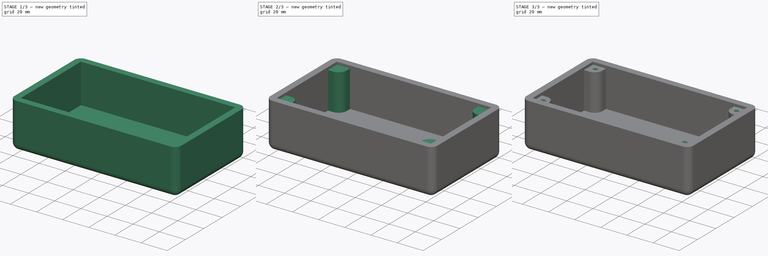
[diagram: build sequence overview — one tinted view per stage of 3, left to right]
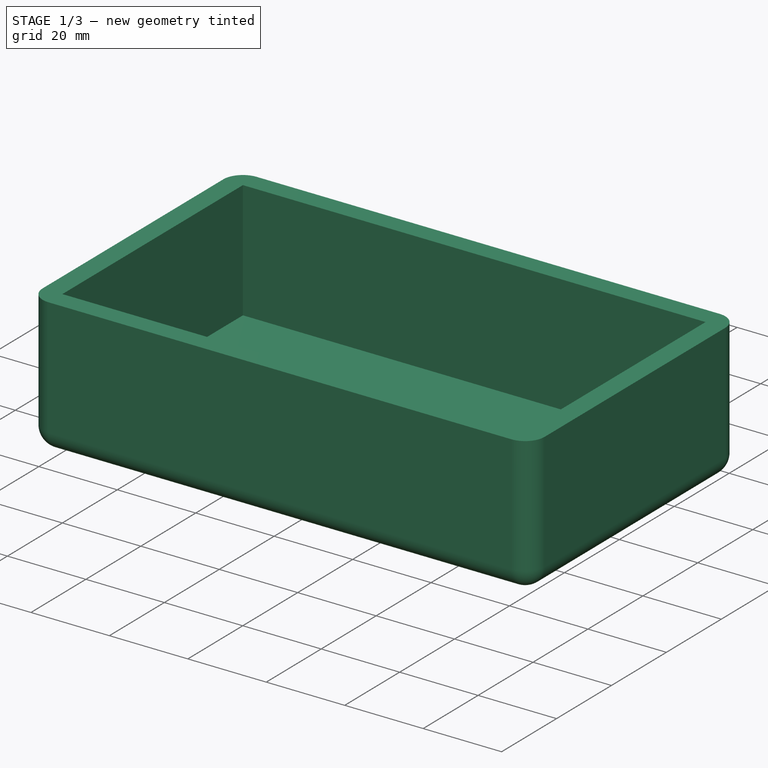
[diagram: stage 1 of 3 — iso view after this stage's code; geometry added in this stage tinted green]
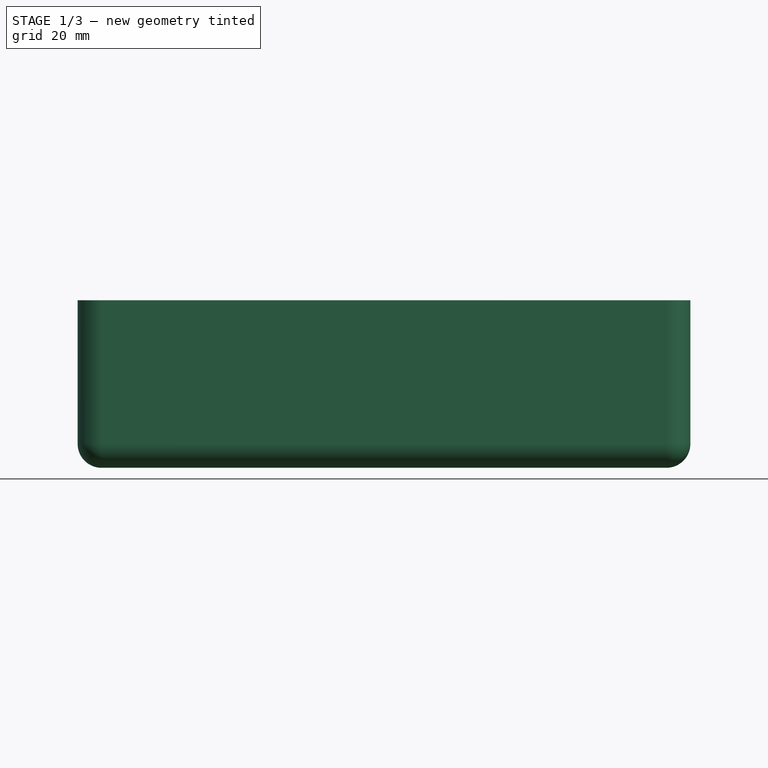
[diagram: stage 1 of 3 — front view after this stage's code; geometry added in this stage tinted green]
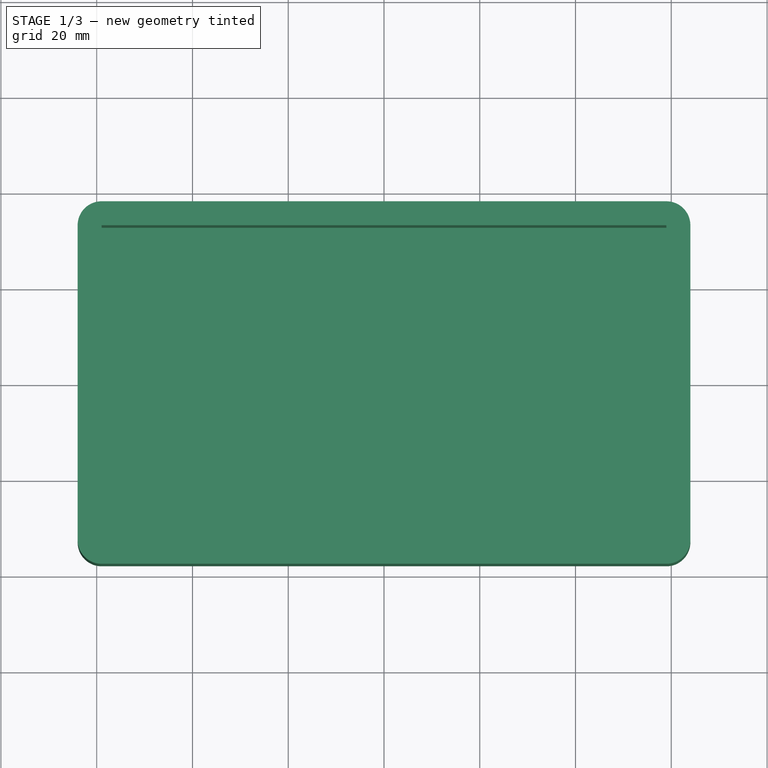
[diagram: stage 1 of 3 — top view after this stage's code; geometry added in this stage tinted green]
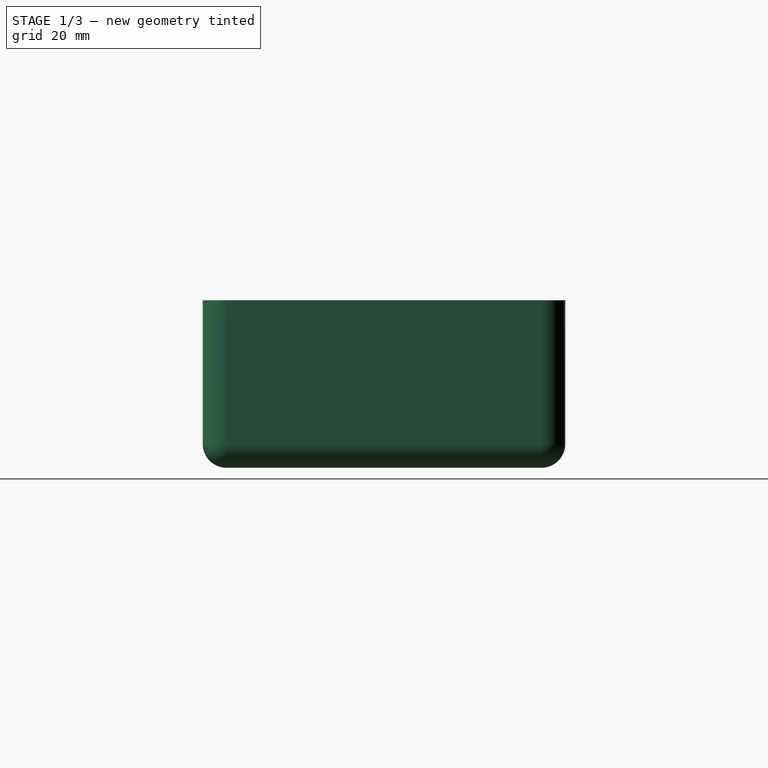
[diagram: stage 1 of 3 — right view after this stage's code; geometry added in this stage tinted green]
FCSTD DOCUMENT  (FreeCAD 0.21R33771 (Git))
Label: korobka_korpus
License: All rights reserved
LicenseURL: http://en.wikipedia.org/wiki/All_rights_reserved
objects: Sketcher::SketchObject×4, PartDesign::Pad×2, PartDesign::Fillet×2, PartDesign::Hole×2, PartDesign::Thickness×1, PartDesign::Body×1
note: 19 computed .brp shape members not serialized (recipe doc carries the construction recipe); baked Part::Feature solids carry a one-line shape summary decoded from their .brp

FEATURE [Sketcher::SketchObject] Sketch
  FullyConstrained = false
  MapMode = 5
  Support = -> [XY_Plane]
  sketch-geometry (5):
    g0: LineSegment StartX=-58.985 StartY=-32.8619 StartZ=0 EndX=-58.985 EndY=32.8619 EndZ=0
    g1: LineSegment StartX=-58.985 StartY=32.8619 StartZ=0 EndX=58.985 EndY=32.8619 EndZ=0
    g2: LineSegment StartX=58.985 StartY=32.8619 StartZ=0 EndX=58.985 EndY=-32.8619 EndZ=0
    g3: LineSegment StartX=58.985 StartY=-32.8619 StartZ=0 EndX=-58.985 EndY=-32.8619 EndZ=0
    g4: GeomPoint X=0 Y=0 Z=0
  constraints (10):
    c: Coincident(g0,g1)
    c: Coincident(g1,g2)
    c: Coincident(g2,g3)
    c: Coincident(g3,g0)
    c: Horizontal(g1)
    c: Horizontal(g3)
    c: Vertical(g0)
    c: Vertical(g2)
    c: Symmetric(g1,g0,g4)
    c: Coincident(g4,g-1)
FEATURE [PartDesign::Pad] Pad
  Direction = (0,0,1)
  Length = 30
  Length2 = 10
  Profile = -> Sketch
  ReferenceAxis = -> Sketch [N_Axis]
  Refine = true
  Type = 0
FEATURE [PartDesign::Thickness] Thickness
  Base = -> Pad [Face6]
  BaseFeature = -> Pad
  Intersection = false
  Join = 0
  Mode = 0
  Refine = true
  SupportTransform = false
  Value = 5
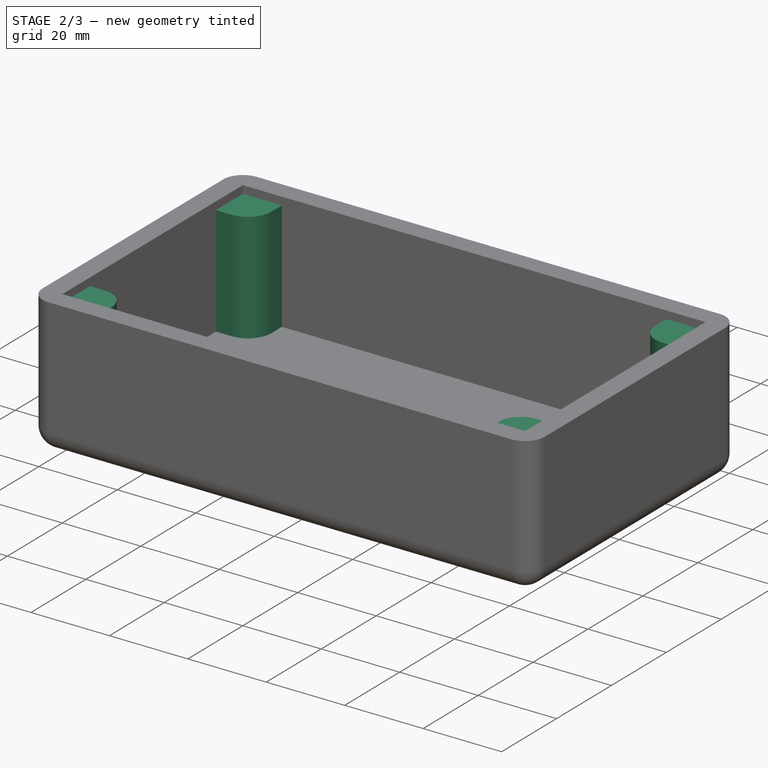
[diagram: stage 2 of 3 — iso view after this stage's code; geometry added in this stage tinted green]
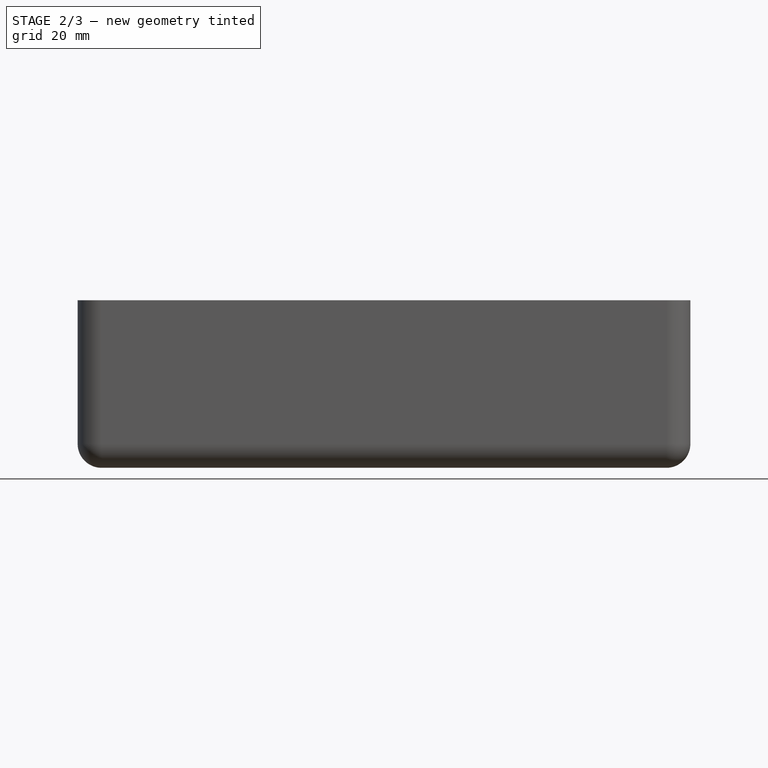
[diagram: stage 2 of 3 — front view after this stage's code; geometry added in this stage tinted green]
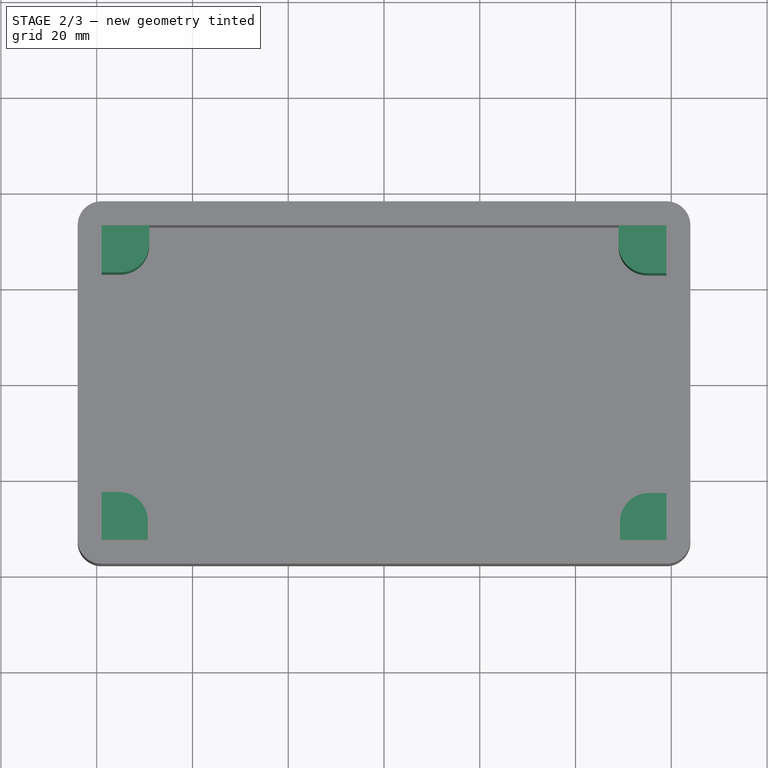
[diagram: stage 2 of 3 — top view after this stage's code; geometry added in this stage tinted green]
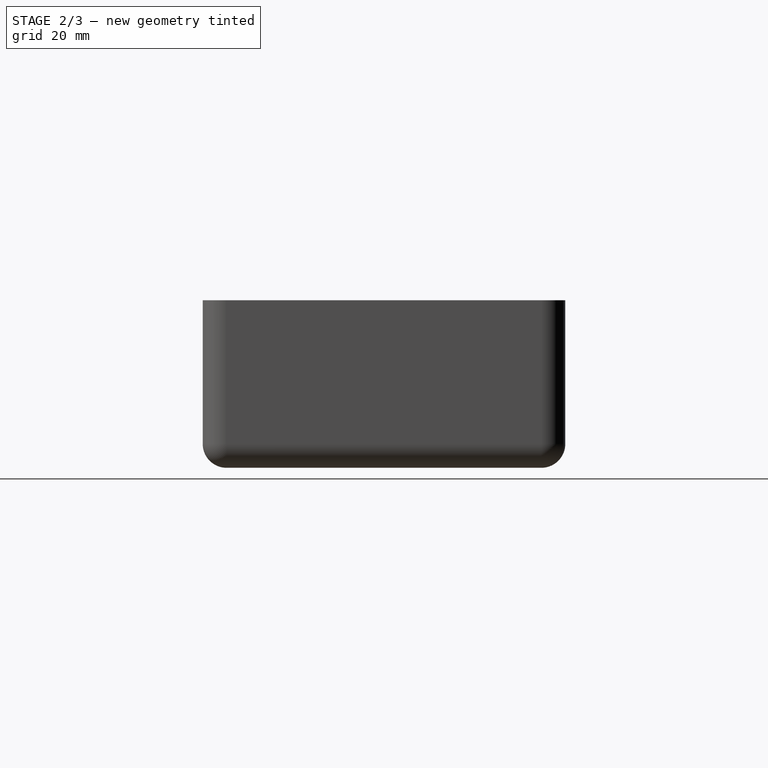
[diagram: stage 2 of 3 — right view after this stage's code; geometry added in this stage tinted green]
FEATURE [Sketcher::SketchObject] Sketch001
  FullyConstrained = false
  MapMode = 5
  Support = -> [Thickness]
  sketch-geometry (16):
    g0: LineSegment StartX=-59.3317 StartY=-32.8111 StartZ=0 EndX=-49.3317 EndY=-32.8111 EndZ=0
    g1: LineSegment StartX=-49.3317 StartY=-32.8111 StartZ=0 EndX=-49.3317 EndY=-22.8111 EndZ=0
    g2: LineSegment StartX=-49.3317 StartY=-22.8111 StartZ=0 EndX=-59.3317 EndY=-22.8111 EndZ=0
    g3: LineSegment StartX=-59.3317 StartY=-22.8111 StartZ=0 EndX=-59.3317 EndY=-32.8111 EndZ=0
    g4: LineSegment StartX=-59.0361 StartY=33.05 StartZ=0 EndX=-49.0361 EndY=33.05 EndZ=0
    g5: LineSegment StartX=-49.0361 StartY=33.05 StartZ=0 EndX=-49.0361 EndY=23.05 EndZ=0
    g6: LineSegment StartX=-49.0361 StartY=23.05 StartZ=0 EndX=-59.0361 EndY=23.05 EndZ=0
    g7: LineSegment StartX=-59.0361 StartY=23.05 StartZ=0 EndX=-59.0361 EndY=33.05 EndZ=0
    g8: LineSegment StartX=58.9771 StartY=32.8685 StartZ=0 EndX=48.9771 EndY=32.8685 EndZ=0
    g9: LineSegment StartX=48.9771 StartY=32.8685 StartZ=0 EndX=48.9771 EndY=22.8685 EndZ=0
    g10: LineSegment StartX=48.9771 StartY=22.8685 StartZ=0 EndX=58.9771 EndY=22.8685 EndZ=0
    g11: LineSegment StartX=58.9771 StartY=22.8685 StartZ=0 EndX=58.9771 EndY=32.8685 EndZ=0
    g12: LineSegment StartX=59.2916 StartY=-33.0453 StartZ=0 EndX=49.2916 EndY=-33.0453 EndZ=0
    g13: LineSegment StartX=49.2916 StartY=-33.0453 StartZ=0 EndX=49.2916 EndY=-23.0453 EndZ=0
    g14: LineSegment StartX=49.2916 StartY=-23.0453 StartZ=0 EndX=59.2916 EndY=-23.0453 EndZ=0
    g15: LineSegment StartX=59.2916 StartY=-23.0453 StartZ=0 EndX=59.2916 EndY=-33.0453 EndZ=0
  constraints (40):
    c: Coincident(g0,g1)
    c: Coincident(g1,g2)
    c: Coincident(g2,g3)
    c: Coincident(g3,g0)
    c: Horizontal(g0)
    c: Horizontal(g2)
    c: Vertical(g1)
    c: Vertical(g3)
    c: Equal(g2,g1)
    c: DistanceX(g2,g2) = 10
    c: Coincident(g4,g5)
    c: Coincident(g5,g6)
    c: Coincident(g6,g7)
    c: Coincident(g7,g4)
    c: Horizontal(g4)
    c: Horizontal(g6)
    c: Vertical(g5)
    c: Vertical(g7)
    c: Coincident(g8,g9)
    c: Coincident(g9,g10)
    c: Coincident(g10,g11)
    c: Coincident(g11,g8)
    c: Horizontal(g8)
    c: Horizontal(g10)
    c: Vertical(g9)
    c: Vertical(g11)
    c: Coincident(g12,g13)
    c: Coincident(g13,g14)
    c: Coincident(g14,g15)
    c: Coincident(g15,g12)
    c: Horizontal(g12)
    c: Horizontal(g14)
    c: Vertical(g13)
    c: Vertical(g15)
    c: Equal(g14,g13)
    c: Equal(g10,g9)
    c: Equal(g6,g5)
    c: Equal(g2,g6)
    c: DistanceX(g10,g10) = 10
    c: Equal(g14,g10)
FEATURE [PartDesign::Pad] Pad001
  BaseFeature = -> Thickness
  Direction = (0,0,1)
  Length = 28
  Length2 = 10
  Profile = -> Sketch001
  ReferenceAxis = -> Sketch001 [N_Axis]
  Refine = true
  Type = 0
FEATURE [PartDesign::Fillet] Fillet
  Base = -> Pad001 [Edge29,Edge31]
  BaseFeature = -> Pad001
  Radius = 6
  Refine = true
  SupportTransform = false
  UseAllEdges = false
FEATURE [PartDesign::Fillet] Fillet001
  Base = -> Fillet [Edge40,Edge56]
  BaseFeature = -> Fillet
  Radius = 6
  Refine = true
  SupportTransform = false
  UseAllEdges = false
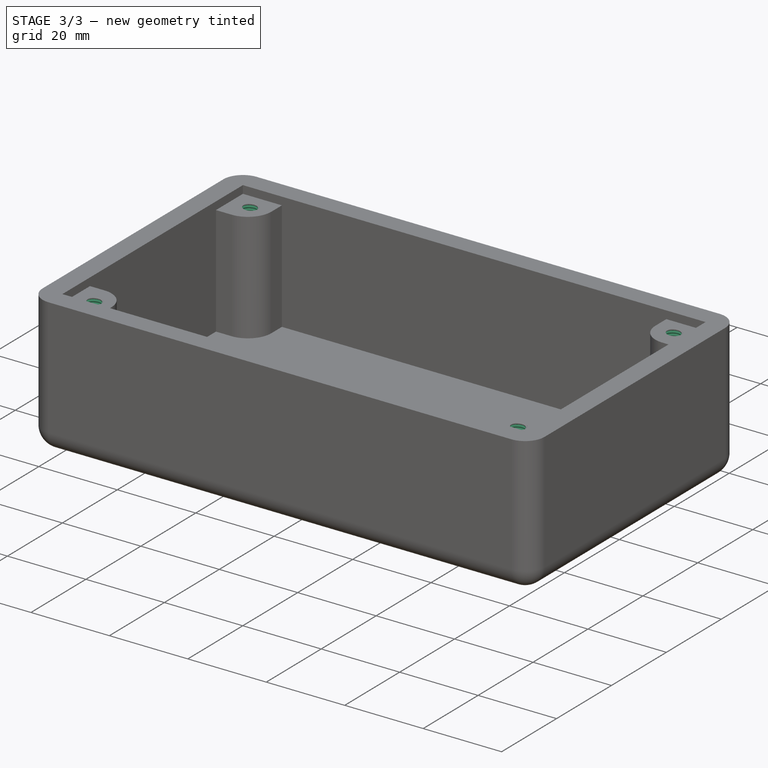
[diagram: stage 3 of 3 — iso view after this stage's code; geometry added in this stage tinted green]
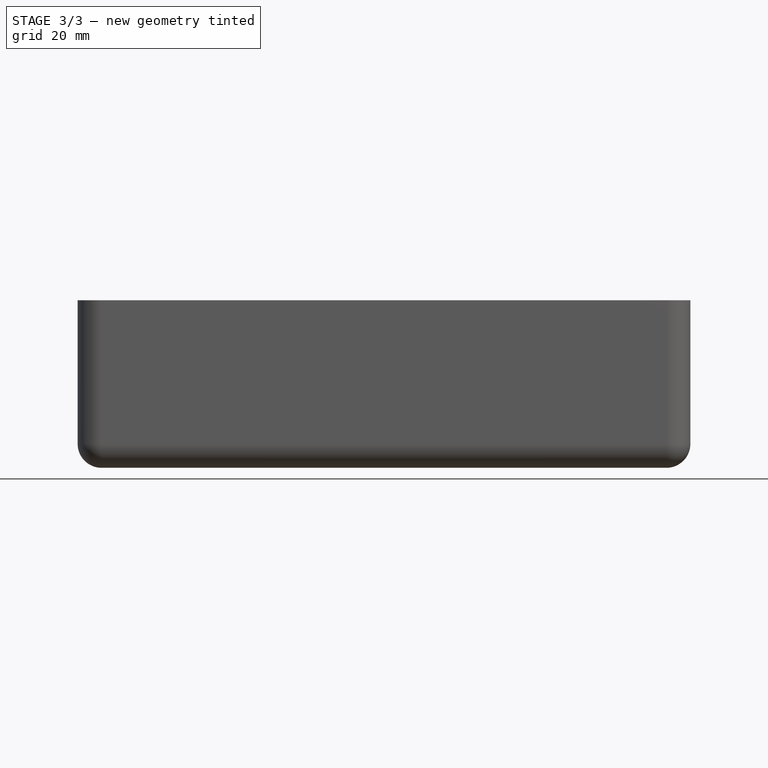
[diagram: stage 3 of 3 — front view after this stage's code; geometry added in this stage tinted green]
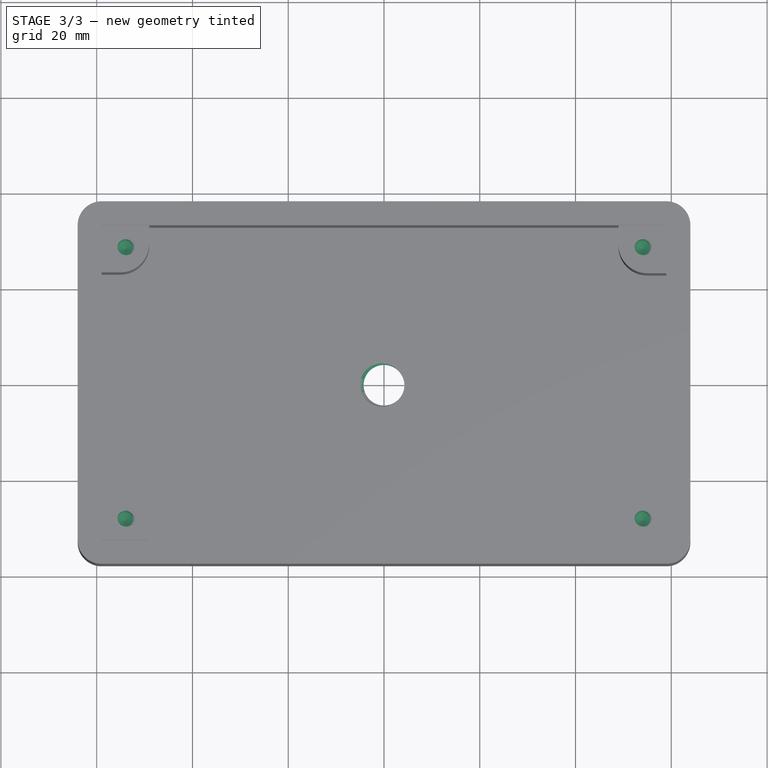
[diagram: stage 3 of 3 — top view after this stage's code; geometry added in this stage tinted green]
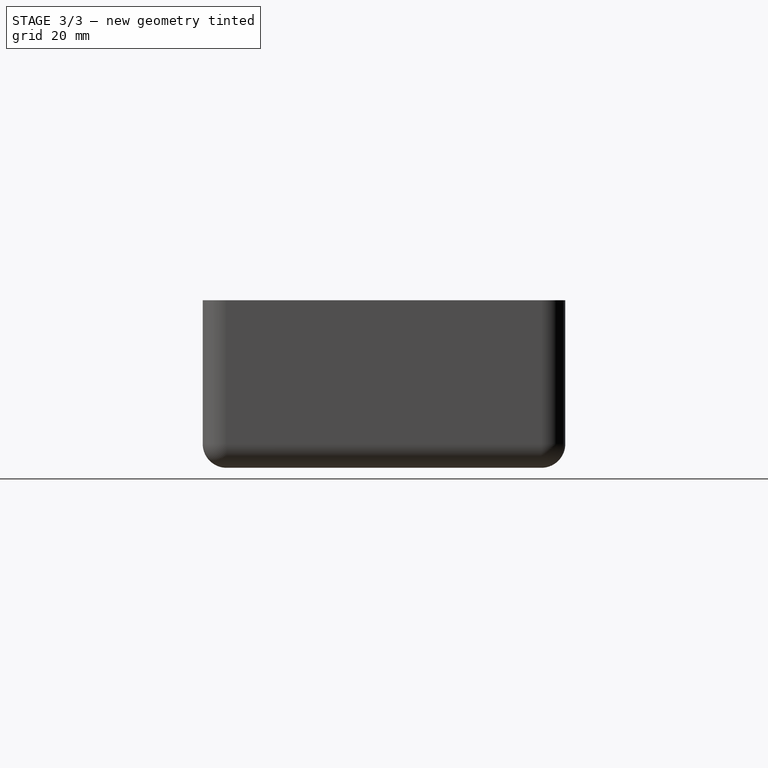
[diagram: stage 3 of 3 — right view after this stage's code; geometry added in this stage tinted green]
FEATURE [Sketcher::SketchObject] Sketch002
  FullyConstrained = false
  MapMode = 5
  Support = -> [Fillet001]
  sketch-geometry (1):
    g0: Circle CenterX=0 CenterY=0 CenterZ=0 NormalX=0 NormalY=0 NormalZ=1 AngleXU=0 Radius=10.9623
  constraints (1):
    c: Coincident(g0,g-1)
FEATURE [PartDesign::Hole] Hole
  BaseFeature = -> Fillet001
  CustomThreadClearance = 0
  Depth = 25
  DepthType = 0
  Diameter = 8.532
  DrillForDepth = false
  DrillPoint = 1
  DrillPointAngle = 118
  HoleCutCountersinkAngle = 90
  HoleCutCustomValues = false
  HoleCutDepth = 0
  HoleCutDiameter = 6.1
  HoleCutType = 0
  ModelThread = true
  Profile = -> Sketch002
  Refine = true
  Tapered = false
  TaperedAngle = 90
  ThreadClass = 0
  ThreadDepth = 25
  ThreadDepthType = 0
  ThreadDirection = 0
  ThreadFit = 0
  ThreadSize = 18
  ThreadType = 1
  Threaded = true
  UseCustomThreadClearance = false
FEATURE [Sketcher::SketchObject] Sketch003
  AttachmentOffset = pos=(0,0,-34) rot=(0,0,1;0rad)
  FullyConstrained = false
  MapMode = 5
  Placement = pos=(0,0,29) rot=(1,0,0;3.14159rad)
  Support = -> [Hole]
  sketch-geometry (6):
    g0: GeomPoint X=0 Y=0 Z=0
    g1: GeomPoint X=0 Y=0 Z=0
    g2: Circle CenterX=54 CenterY=28.355 CenterZ=0 NormalX=0 NormalY=0 NormalZ=1 AngleXU=0 Radius=2
    g3: Circle CenterX=-54 CenterY=28.355 CenterZ=0 NormalX=0 NormalY=0 NormalZ=1 AngleXU=0 Radius=2
    g4: Circle CenterX=-54 CenterY=-28.355 CenterZ=0 NormalX=0 NormalY=0 NormalZ=1 AngleXU=0 Radius=2
    g5: Circle CenterX=54 CenterY=-28.355 CenterZ=0 NormalX=0 NormalY=0 NormalZ=1 AngleXU=0 Radius=2
  constraints (6):
    c: Coincident(g0,g-1)
    c: Coincident(g1,g0)
    c: Equal(g2,g3)
    c: Equal(g3,g4)
    c: Equal(g4,g5)
    c: Radius(g3) = 2
FEATURE [PartDesign::Hole] Hole001
  BaseFeature = -> Hole
  CustomThreadClearance = 0
  Depth = 25
  DepthType = 0
  Diameter = 3.322
  DrillForDepth = false
  DrillPoint = 1
  DrillPointAngle = 118
  HoleCutCountersinkAngle = 90
  HoleCutCustomValues = false
  HoleCutDepth = 0
  HoleCutDiameter = 9.5
  HoleCutType = 0
  ModelThread = true
  Profile = -> Sketch003
  Refine = true
  Reversed = true
  Tapered = false
  TaperedAngle = 90
  ThreadClass = 0
  ThreadDepth = 25
  ThreadDepthType = 0
  ThreadDirection = 0
  ThreadFit = 0
  ThreadSize = 11
  ThreadType = 1
  Threaded = true
  UseCustomThreadClearance = false
FEATURE [PartDesign::Body] Body
  Group = -> [Sketch,Pad,Thickness,Sketch001,Pad001,Fillet,Fillet001,Sketch002,Hole,Sketch003,Hole001]
  Origin = -> Origin
  Tip = -> Hole001
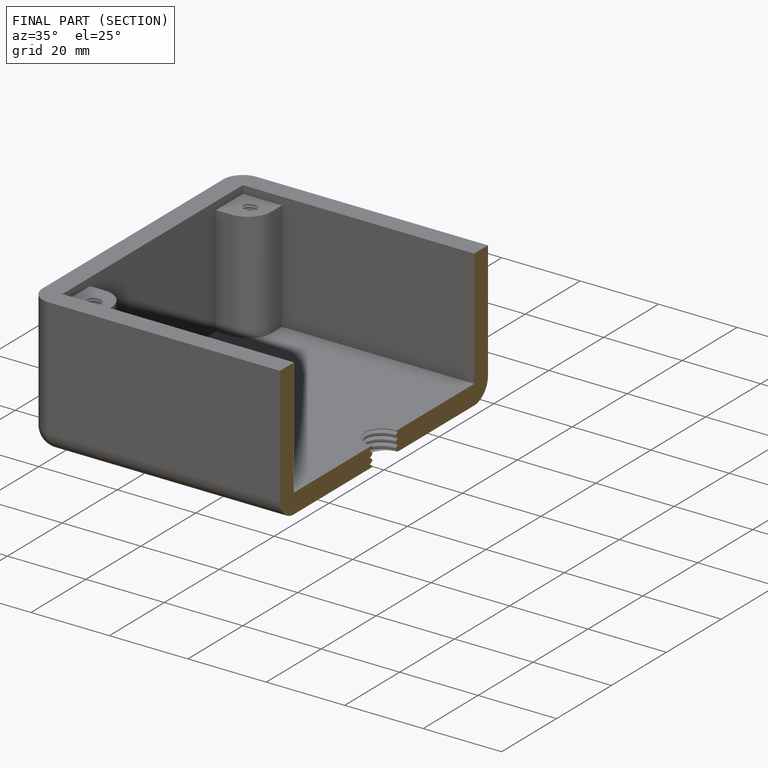
[diagram: finished part — half-section view (interior)]
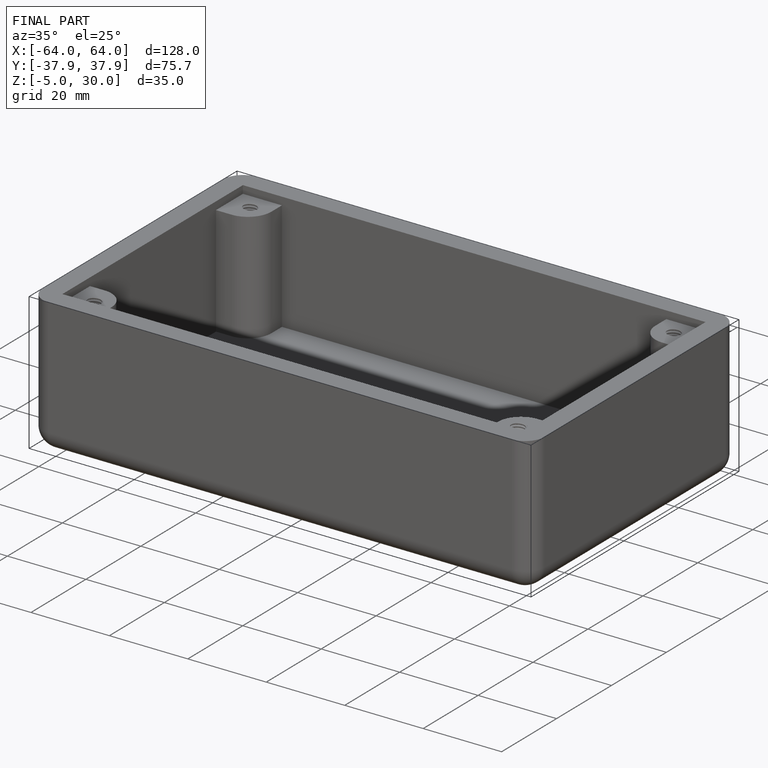
[diagram: finished part — iso view with bounding-box wireframe]
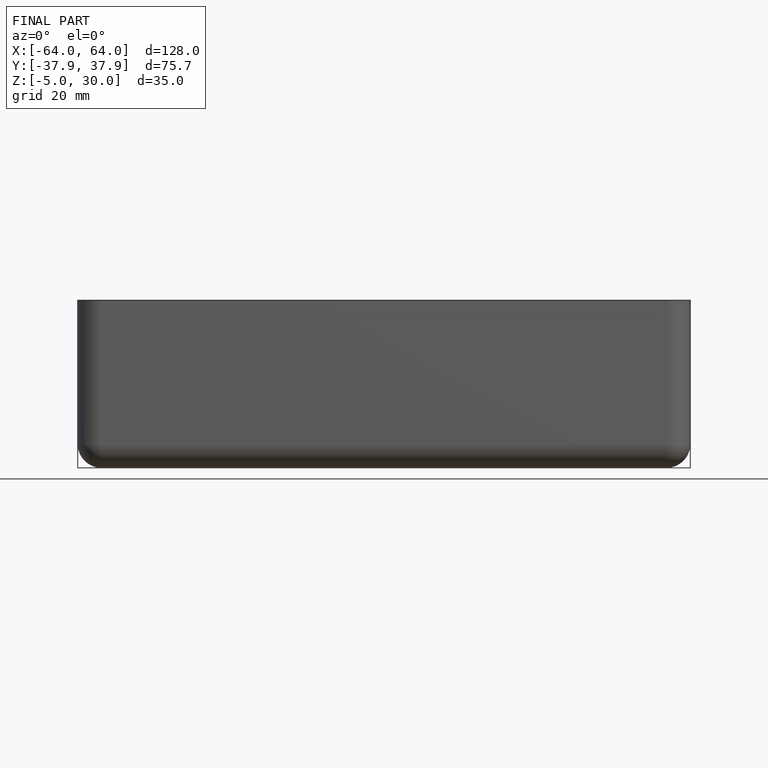
[diagram: finished part — front view with bounding-box wireframe]
